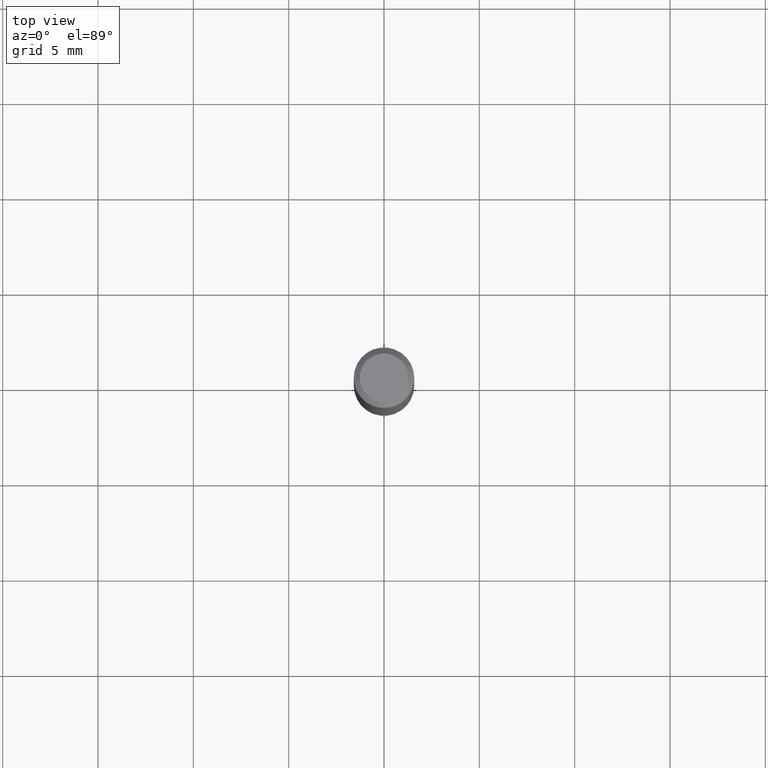
[diagram: clean part render]
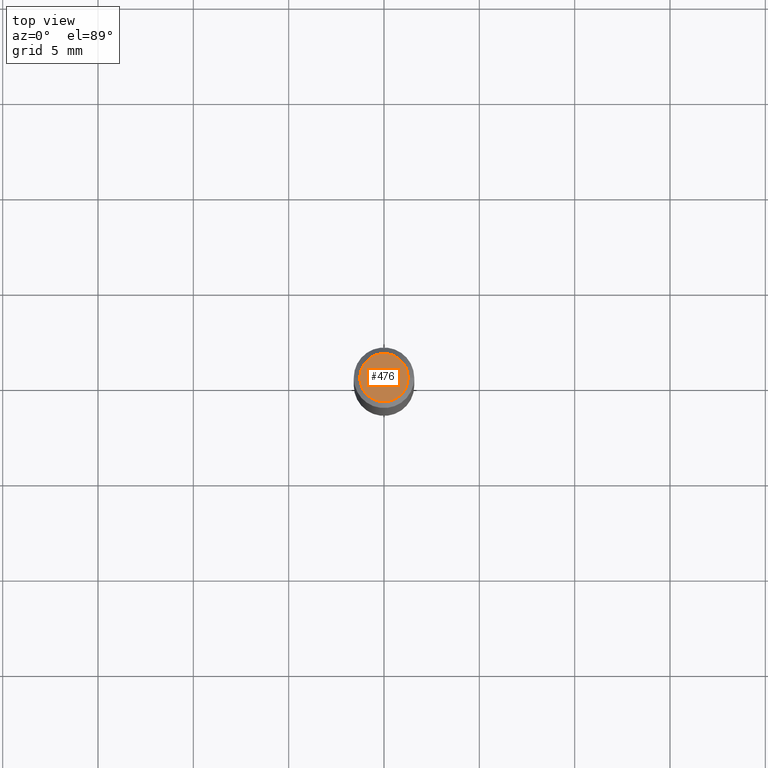
[diagram: same view with one face highlighted and labeled with its STEP entity id]
A machine part, top view. The second image highlights one B-rep face of the part: STEP entity #476.
In plain terms, the highlighted planar face has unit normal (0, -0, -1).
Its self-contained STEP definition (entity closure, byte-faithful):
#18 = CARTESIAN_POINT ( 'NONE',  ( 3.893286209682126177E-47, -5.558580879666067980E-33, -1.592040838891559689E-18 ) ) ;
#23 = DIRECTION ( 'NONE',  ( -1.000000000000000000, 6.982962677686265922E-15, -4.876176775795935793E-29 ) ) ;
#34 = EDGE_LOOP ( 'NONE', ( #317, #319 ) ) ;
#57 = AXIS2_PLACEMENT_3D ( 'NONE', #360, #107, #472 ) ;
#59 = VERTEX_POINT ( 'NONE', #417 ) ;
#107 = DIRECTION ( 'NONE',  ( -2.445468806185136597E-29, 3.491481338843145583E-15, 1.000000000000000000 ) ) ;
#124 = DIRECTION ( 'NONE',  ( -2.445468806185136597E-29, 3.491481338843145583E-15, 1.000000000000000000 ) ) ;
#138 = FACE_OUTER_BOUND ( 'NONE', #34, .T. ) ;
#158 = VERTEX_POINT ( 'NONE', #376 ) ;
#250 = EDGE_CURVE ( 'NONE', #158, #59, #331, .T. ) ;
#317 = ORIENTED_EDGE ( 'NONE', *, *, #414, .T. ) ;
#319 = ORIENTED_EDGE ( 'NONE', *, *, #250, .T. ) ;
#331 = CIRCLE ( 'NONE', #399, 0.04999999999999999584 ) ;
#338 = AXIS2_PLACEMENT_3D ( 'NONE', #435, #409, #23 ) ;
#348 = DIRECTION ( 'NONE',  ( 1.000000000000000000, -6.982962677686265922E-15, 4.875957971899673662E-29 ) ) ;
#360 = CARTESIAN_POINT ( 'NONE',  ( 3.893286209682126177E-47, -5.558580879666067980E-33, -1.592040838891559689E-18 ) ) ;
#376 = CARTESIAN_POINT ( 'NONE',  ( 0.04999999999999999584, -4.077247707424184212E-16, -1.592040838888913461E-18 ) ) ;
#399 = AXIS2_PLACEMENT_3D ( 'NONE', #18, #124, #348 ) ;
#406 = PLANE ( 'NONE',  #338 ) ;
#409 = DIRECTION ( 'NONE',  ( 2.438088387897960049E-29, -3.491481338843145188E-15, -1.000000000000000000 ) ) ;
#414 = EDGE_CURVE ( 'NONE', #59, #158, #430, .T. ) ;
#417 = CARTESIAN_POINT ( 'NONE',  ( -0.04999999999999999584, 3.709698922520826725E-16, -1.592040838894077649E-18 ) ) ;
#430 = CIRCLE ( 'NONE', #57, 0.04999999999999999584 ) ;
#435 = CARTESIAN_POINT ( 'NONE',  ( 1.946643104841063088E-47, -2.779290439833033990E-33, -7.960204194457798443E-19 ) ) ;
#472 = DIRECTION ( 'NONE',  ( 1.000000000000000000, -6.982962677686265922E-15, 4.875957971899673662E-29 ) ) ;
#476 = ADVANCED_FACE ( 'NONE', ( #138 ), #406, .F. ) ;